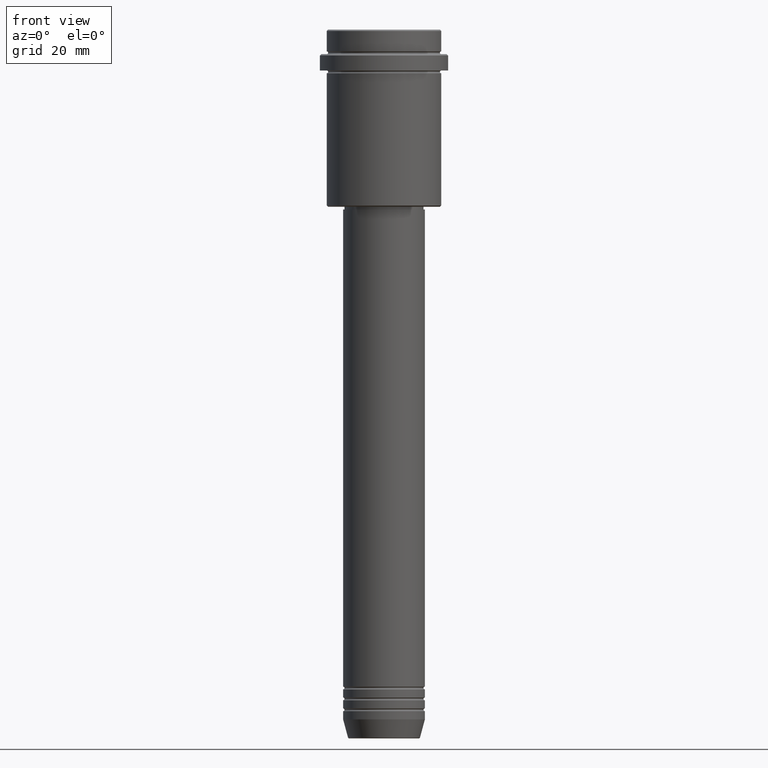
[diagram: clean part render]
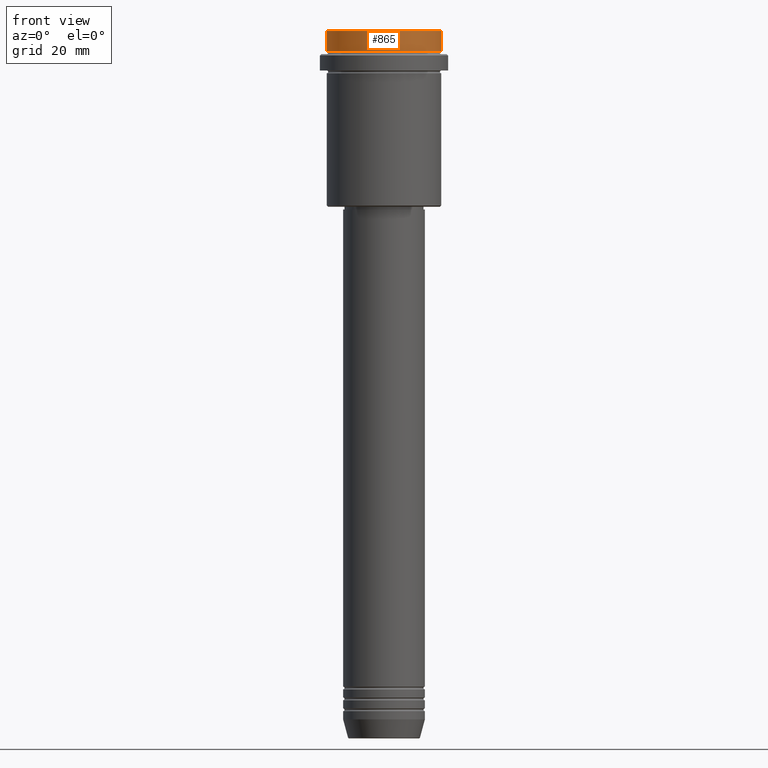
[diagram: same view with one face highlighted and labeled with its STEP entity id]
A machine part, front view. The second image highlights one B-rep face of the part: STEP entity #865.
In plain terms, the highlighted cylindrical surface (partial cylindrical patch) has radius 21 mm, axis along (-0, -0, 1).
Its self-contained STEP definition (entity closure, byte-faithful):
#110 = CIRCLE ( 'NONE', #1348, 20.99999999999999645 ) ;
#185 = CYLINDRICAL_SURFACE ( 'NONE', #763, 20.99999999999999645 ) ;
#243 = EDGE_LOOP ( 'NONE', ( #587, #707, #1358, #392 ) ) ;
#257 = AXIS2_PLACEMENT_3D ( 'NONE', #693, #683, #1007 ) ;
#265 = VERTEX_POINT ( 'NONE', #674 ) ;
#349 = CARTESIAN_POINT ( 'NONE',  ( -20.99999999999999645, 2.571758278209441267E-15, -7.999999999999998224 ) ) ;
#392 = ORIENTED_EDGE ( 'NONE', *, *, #1075, .T. ) ;
#395 = CIRCLE ( 'NONE', #257, 20.99999999999999645 ) ;
#408 = CARTESIAN_POINT ( 'NONE',  ( 20.99999999999999645, 0.000000000000000000, 0.000000000000000000 ) ) ;
#426 = VERTEX_POINT ( 'NONE', #349 ) ;
#507 = EDGE_CURVE ( 'NONE', #426, #859, #706, .T. ) ;
#515 = CARTESIAN_POINT ( 'NONE',  ( 20.99999999999999645, 0.000000000000000000, -0.4999999999999241163 ) ) ;
#574 = EDGE_CURVE ( 'NONE', #426, #265, #395, .T. ) ;
#587 = ORIENTED_EDGE ( 'NONE', *, *, #507, .F. ) ;
#617 = LINE ( 'NONE', #408, #771 ) ;
#639 = VECTOR ( 'NONE', #665, 1000.000000000000000 ) ;
#665 = DIRECTION ( 'NONE',  ( -0.000000000000000000, -0.000000000000000000, 1.000000000000000000 ) ) ;
#674 = CARTESIAN_POINT ( 'NONE',  ( 20.99999999999999645, 0.000000000000000000, -7.999999999999998224 ) ) ;
#683 = DIRECTION ( 'NONE',  ( -0.000000000000000000, -0.000000000000000000, 1.000000000000000000 ) ) ;
#693 = CARTESIAN_POINT ( 'NONE',  ( 0.000000000000000000, 0.000000000000000000, -7.999999999999998224 ) ) ;
#706 = LINE ( 'NONE', #1146, #639 ) ;
#707 = ORIENTED_EDGE ( 'NONE', *, *, #574, .T. ) ;
#759 = EDGE_CURVE ( 'NONE', #265, #1232, #617, .T. ) ;
#763 = AXIS2_PLACEMENT_3D ( 'NONE', #955, #1410, #825 ) ;
#771 = VECTOR ( 'NONE', #952, 1000.000000000000000 ) ;
#825 = DIRECTION ( 'NONE',  ( 1.000000000000000000, 0.000000000000000000, 0.000000000000000000 ) ) ;
#859 = VERTEX_POINT ( 'NONE', #1383 ) ;
#865 = ADVANCED_FACE ( 'NONE', ( #1156 ), #185, .T. ) ;
#952 = DIRECTION ( 'NONE',  ( -0.000000000000000000, -0.000000000000000000, 1.000000000000000000 ) ) ;
#955 = CARTESIAN_POINT ( 'NONE',  ( 0.000000000000000000, 0.000000000000000000, 0.000000000000000000 ) ) ;
#1007 = DIRECTION ( 'NONE',  ( 1.000000000000000000, 0.000000000000000000, 0.000000000000000000 ) ) ;
#1048 = CARTESIAN_POINT ( 'NONE',  ( 0.000000000000000000, 0.000000000000000000, -0.4999999999999241163 ) ) ;
#1075 = EDGE_CURVE ( 'NONE', #1232, #859, #110, .T. ) ;
#1146 = CARTESIAN_POINT ( 'NONE',  ( -20.99999999999999645, 2.571758278209441267E-15, 0.000000000000000000 ) ) ;
#1156 = FACE_OUTER_BOUND ( 'NONE', #243, .T. ) ;
#1232 = VERTEX_POINT ( 'NONE', #515 ) ;
#1261 = DIRECTION ( 'NONE',  ( 1.000000000000000000, 0.000000000000000000, 0.000000000000000000 ) ) ;
#1348 = AXIS2_PLACEMENT_3D ( 'NONE', #1048, #1386, #1261 ) ;
#1358 = ORIENTED_EDGE ( 'NONE', *, *, #759, .T. ) ;
#1383 = CARTESIAN_POINT ( 'NONE',  ( -20.99999999999999645, 2.571758278209441267E-15, -0.4999999999999241163 ) ) ;
#1386 = DIRECTION ( 'NONE',  ( 0.000000000000000000, 0.000000000000000000, -1.000000000000000000 ) ) ;
#1410 = DIRECTION ( 'NONE',  ( -0.000000000000000000, -0.000000000000000000, 1.000000000000000000 ) ) ;